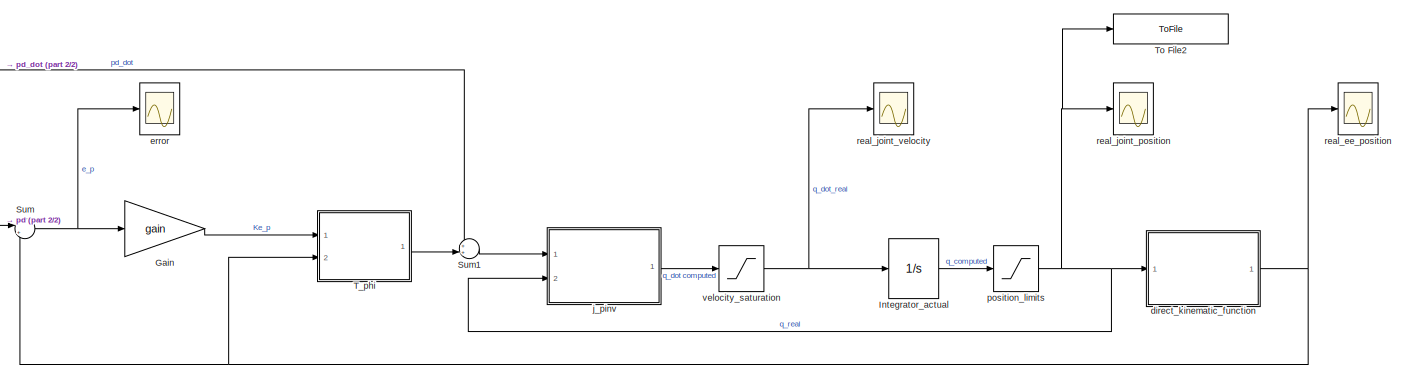
[diagram: root canvas - part 1/2, center side, full height]
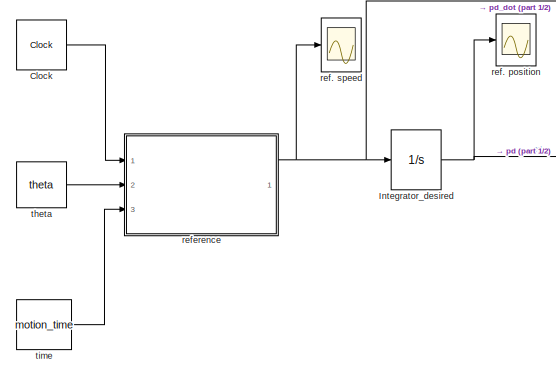
[diagram: root canvas - part 2/2, left side, full height]
MODEL slx_8a65653787d6
KIND model
CONFIG AbsTol = auto
CONFIG EnableMultiTasking = off
CONFIG FixedStep = step
CONFIG MaxStep = auto
CONFIG MinStep = auto
CONFIG RelTol = 1e-3
CONFIG SampleTimeConstraint = Unconstrained
CONFIG Solver = ode4
CONFIG SolverName = ode4
CONFIG StartTime = 0.0
CONFIG StopTime = t_sim
BLOCK [Clock] Clock
  DisplayTime = on
BLOCK [Gain] Gain
  Gain = gain
  Multiplication = Matrix(K*u) (u vector)
  OutDataTypeStr = Inherit: Inherit via internal rule
  ParamDataTypeStr = Inherit: Inherit via internal rule
  SaturateOnIntegerOverflow = off
BLOCK [Integrator] Integrator_actual
  InitialCondition = q_init
  Ports = [1, 1]
BLOCK [Integrator] Integrator_desired
  InitialCondition = p_init
  Ports = [1, 1]
BLOCK [Sum] Sum
  IconShape = round
  InputSameDT = off
  Inputs = |+-
  OutDataTypeStr = Inherit: Inherit via internal rule
  Ports = [2, 1]
  SaturateOnIntegerOverflow = off
BLOCK [Sum] Sum1
  IconShape = round
  InputSameDT = off
  Inputs = ++|
  OutDataTypeStr = Inherit: Inherit via internal rule
  Ports = [2, 1]
  SaturateOnIntegerOverflow = off
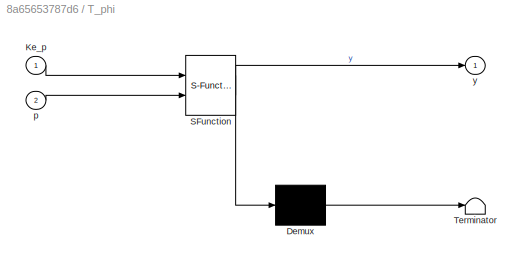
BLOCK [SubSystem] T_phi
  ErrorFcn = Stateflow.Translate.translate
  PermitHierarchicalResolution = ExplicitOnly
  Ports = [2, 1]
  RequestExecContextInheritance = off
  SFBlockType = MATLAB Function
  TreatAsAtomicUnit = on
  Variant = off
BLOCK [Demux] T_phi/ Demux 
  Outputs = 1
  Ports = [1, 1]
BLOCK [S-Function] T_phi/ SFunction 
  EnableBusSupport = on
  FunctionName = sf_sfun
  PortCounts = [2 2]
  Ports = [2, 2]
  SFcnIsStateOwnerBlock = off
  SFunctionDeploymentMode = off
  Tag = Stateflow S-Function simulazione_003_s 4
BLOCK [Terminator] T_phi/ Terminator 
BLOCK [Inport] T_phi/Ke_p
  IconDisplay = Port number
BLOCK [Inport] T_phi/p
  IconDisplay = Port number
  Port = 2
BLOCK [Outport] T_phi/y
  IconDisplay = Port number
BLOCK [ToFile] To File2
  Filename = joint_position.mat
  MatrixName = q
  Ports = [1]
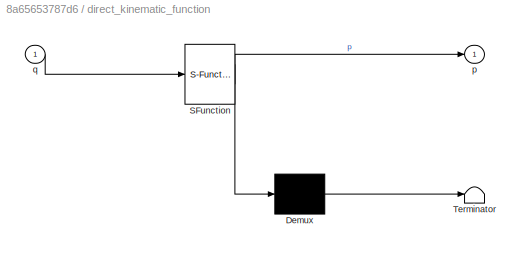
BLOCK [SubSystem] direct_kinematic_function
  ErrorFcn = Stateflow.Translate.translate
  PermitHierarchicalResolution = ExplicitOnly
  Ports = [1, 1]
  RequestExecContextInheritance = off
  SFBlockType = MATLAB Function
  TreatAsAtomicUnit = on
  Variant = off
BLOCK [Demux] direct_kinematic_function/ Demux 
  Outputs = 1
  Ports = [1, 1]
BLOCK [S-Function] direct_kinematic_function/ SFunction 
  EnableBusSupport = on
  FunctionName = sf_sfun
  PortCounts = [1 2]
  Ports = [1, 2]
  SFcnIsStateOwnerBlock = off
  SFunctionDeploymentMode = off
  Tag = Stateflow S-Function simulazione_003_s 3
BLOCK [Terminator] direct_kinematic_function/ Terminator 
BLOCK [Outport] direct_kinematic_function/p
  IconDisplay = Port number
BLOCK [Inport] direct_kinematic_function/q
  IconDisplay = Port number
BLOCK [Scope] error
  NumInputPorts = 1
  Ports = [1]
  ScopeSpecificationString = Simulink.scopes.TimeScopeBlockCfg('CurrentConfiguration', extmgr.ConfigurationSet(extmgr.Configuration('Core','General UI',true,'FigureColor',[1 1 1]),extmgr.Configuration('Core','Source UI',true),extmgr.Configuration('Sources','WiredSimulink',true,'DataLoggingVariableName','ScopeData1'),extmgr.Configuration('Visuals','Time Domain',true,'SerializedDisplays',{struct('MinYLimReal','-0.01479','MaxYLi...<+2266ch>
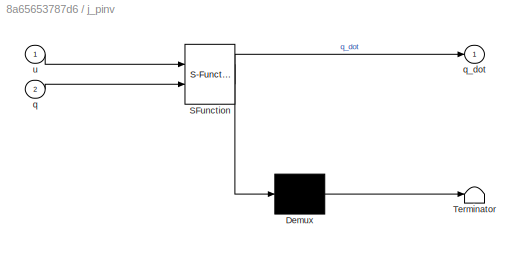
BLOCK [SubSystem] j_pinv
  ErrorFcn = Stateflow.Translate.translate
  PermitHierarchicalResolution = ExplicitOnly
  Ports = [2, 1]
  RequestExecContextInheritance = off
  SFBlockType = MATLAB Function
  TreatAsAtomicUnit = on
  Variant = off
BLOCK [Demux] j_pinv/ Demux 
  Outputs = 1
  Ports = [1, 1]
BLOCK [S-Function] j_pinv/ SFunction 
  EnableBusSupport = on
  FunctionName = sf_sfun
  PortCounts = [2 2]
  Ports = [2, 2]
  SFcnIsStateOwnerBlock = off
  SFunctionDeploymentMode = off
  Tag = Stateflow S-Function simulazione_003_s 1
BLOCK [Terminator] j_pinv/ Terminator 
BLOCK [Inport] j_pinv/q
  IconDisplay = Port number
  Port = 2
BLOCK [Outport] j_pinv/q_dot
  IconDisplay = Port number
BLOCK [Inport] j_pinv/u
  IconDisplay = Port number
BLOCK [Saturate] position_limits 
  InputPortMap = u0
  LowerLimit = movement_lower_limit
  Ports = [1, 1]
  UpperLimit = movement_upper_limit
BLOCK [Scope] real_ee_position
  NumInputPorts = 1
  Ports = [1]
  ScopeSpecificationString = Simulink.scopes.TimeScopeBlockCfg('CurrentConfiguration', extmgr.ConfigurationSet(extmgr.Configuration('Core','General UI',true),extmgr.Configuration('Core','Source UI',true),extmgr.Configuration('Sources','WiredSimulink',true,'DataLoggingVariableName','ScopeData3'),extmgr.Configuration('Visuals','Time Domain',true,'SerializedDisplays',{struct('MinYLimReal','-1.9635','MaxYLimReal','1.9635','YLabel...<+1599ch>
BLOCK [Scope] real_joint_position
  NumInputPorts = 1
  Ports = [1]
  ScopeSpecificationString = Simulink.scopes.TimeScopeBlockCfg('CurrentConfiguration', extmgr.ConfigurationSet(extmgr.Configuration('Core','General UI',true,'FigureColor',[0 0 0]),extmgr.Configuration('Core','Source UI',true),extmgr.Configuration('Sources','WiredSimulink',true,'DataLoggingVariableName','ScopeData1'),extmgr.Configuration('Visuals','Time Domain',true,'SerializedDisplays',{struct('MinYLimReal','-0.71636','MaxYLi...<+1540ch>
BLOCK [Scope] real_joint_velocity
  NumInputPorts = 1
  Ports = [1]
  ScopeSpecificationString = Simulink.scopes.TimeScopeBlockCfg('CurrentConfiguration', extmgr.ConfigurationSet(extmgr.Configuration('Core','General UI',true),extmgr.Configuration('Core','Source UI',true),extmgr.Configuration('Sources','WiredSimulink',true,'DataLoggingVariableName','ScopeData2'),extmgr.Configuration('Visuals','Time Domain',true,'SerializedDisplays',{struct('MinYLimReal','-0.34702','MaxYLimReal','0.50421','YLab...<+1515ch>
BLOCK [Scope] ref. position
  NumInputPorts = 1
  Ports = [1]
  ScopeSpecificationString = Simulink.scopes.TimeScopeBlockCfg('CurrentConfiguration', extmgr.ConfigurationSet(extmgr.Configuration('Core','General UI',true),extmgr.Configuration('Core','Source UI',true),extmgr.Configuration('Sources','WiredSimulink',true,'DataLoggingVariableName','ScopeData1'),extmgr.Configuration('Visuals','Time Domain',true,'SerializedDisplays',{struct('MinYLimReal','-2.35311','MaxYLimReal','2.81701','YLab...<+1442ch>
BLOCK [Scope] ref. speed
  NumInputPorts = 1
  Ports = [1]
  ScopeSpecificationString = Simulink.scopes.TimeScopeBlockCfg('CurrentConfiguration', extmgr.ConfigurationSet(extmgr.Configuration('Core','General UI',true),extmgr.Configuration('Core','Source UI',true),extmgr.Configuration('Sources','WiredSimulink',true),extmgr.Configuration('Visuals','Time Domain',true,'SerializedDisplays',{struct('MinYLimReal','-29.45155','MaxYLimReal','29.44451','YLabelReal','','MinYLimMag','0.00000','Ma...<+1433ch>
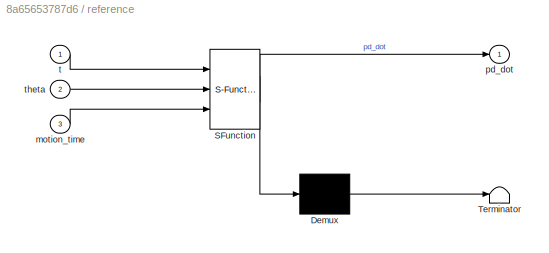
BLOCK [SubSystem] reference
  ErrorFcn = Stateflow.Translate.translate
  PermitHierarchicalResolution = ExplicitOnly
  Ports = [3, 1]
  RequestExecContextInheritance = off
  SFBlockType = MATLAB Function
  TreatAsAtomicUnit = on
  Variant = off
BLOCK [Demux] reference/ Demux 
  Outputs = 1
  Ports = [1, 1]
BLOCK [S-Function] reference/ SFunction 
  EnableBusSupport = on
  FunctionName = sf_sfun
  PortCounts = [3 2]
  Ports = [3, 2]
  SFcnIsStateOwnerBlock = off
  SFunctionDeploymentMode = off
  Tag = Stateflow S-Function simulazione_003_s 2
BLOCK [Terminator] reference/ Terminator 
BLOCK [Inport] reference/motion_time
  IconDisplay = Port number
  Port = 3
BLOCK [Outport] reference/pd_dot
  IconDisplay = Port number
BLOCK [Inport] reference/t
  IconDisplay = Port number
BLOCK [Inport] reference/theta
  IconDisplay = Port number
  Port = 2
BLOCK [Constant] theta
  Value = theta
BLOCK [Constant] time
  Value = motion_time
BLOCK [Saturate] velocity_saturation
  InputPortMap = u0
  LowerLimit = velocity_lower_limit
  Ports = [1, 1]
  UpperLimit = velocity_upper_limit
LINE Clock:1 -> reference:1
LINE Gain:1 -> T_phi:1
LINE Integrator_actual:1 -> position_limits :1
NET Integrator_desired:1 -> Sum:1, ref. position:1
LINE Sum1:1 -> j_pinv:1
NET Sum:1 -> Gain:1, error:1
LINE T_phi:1 -> Sum1:2
NET direct_kinematic_function:1 -> Sum:2, T_phi:2, real_ee_position:1
LINE j_pinv:1 -> velocity_saturation:1
NET position_limits :1 -> To File2:1, direct_kinematic_function:1, j_pinv:2, real_joint_position:1
NET reference:1 -> Integrator_desired:1, Sum1:1, ref. speed:1
LINE theta:1 -> reference:2
LINE time:1 -> reference:3
NET velocity_saturation:1 -> Integrator_actual:1, real_joint_velocity:1
note: NET lines group one-source signal fan-out (src -> all destinations, sorted); 1:1 wires keep LINE
CHART j_pinv states=1 transitions=1
  STATE_LABEL 'eML_blk_kernel()'
  STATE_LABEL 'SCRIPT:\nfunction q_dot = j_pinv(u, q)\n    \n    J = geometric_jacobian(q);    \n    J_p = pinv(J);\n    q_dot = J_p*u;\n    \nend'
CHART reference states=1 transitions=1
  STATE_LABEL 'eML_blk_kernel()'
  STATE_LABEL 'SCRIPT:\nfunction pd_dot = reference(t, theta, motion_time)\n\n    pd_dot = rotational_reference(t, theta, motion_time);\n    \nend'
CHART direct_kinematic_function states=1 transitions=1
  STATE_LABEL 'eML_blk_kernel()'
  STATE_LABEL 'SCRIPT:\nfunction p = dkf(q)\n\n    p = direct_kinematic(q);\n    '
CHART T_phi states=1 transitions=1
  STATE_LABEL 'eML_blk_kernel()'
  STATE_LABEL 'SCRIPT:\nfunction y = T_phi(Ke_p, p)\n        \n    t_phi_matrix = [0,  -sin(p(4)),     cos(p(4))*sin(p(5));\n                    0,   cos(p(4)),     sin(p(4))*sin(p(5));\n                    1,       0,             cos(p(5))];\n            \n    t_phi_matrix_6x6 = [ eye(3),   zeros(3);\n                        zeros(3), t_phi_matrix];\n    \n    y = t_phi_matrix_6x6 * Ke_p;\nend'
